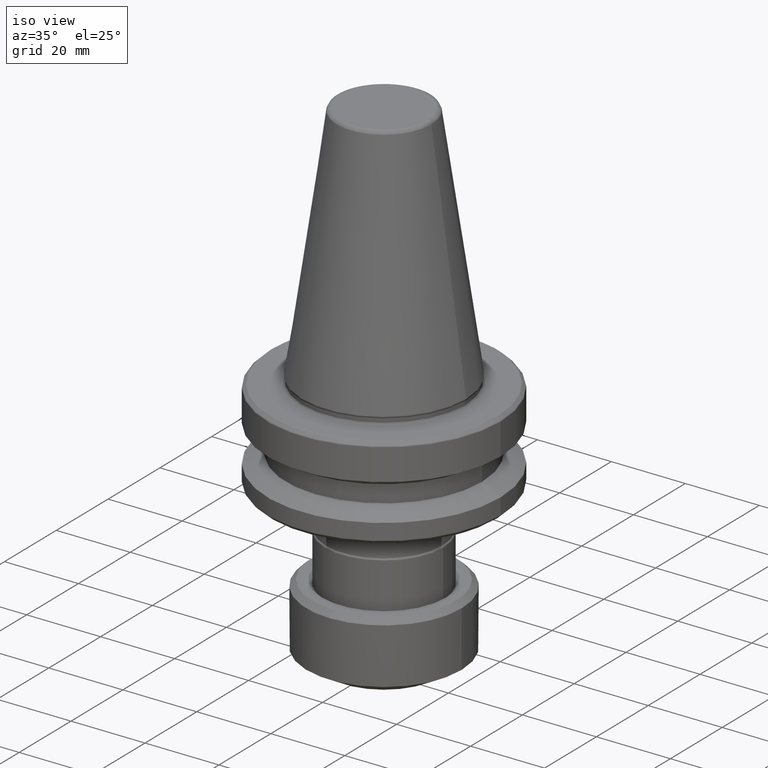
[diagram: clean part render]
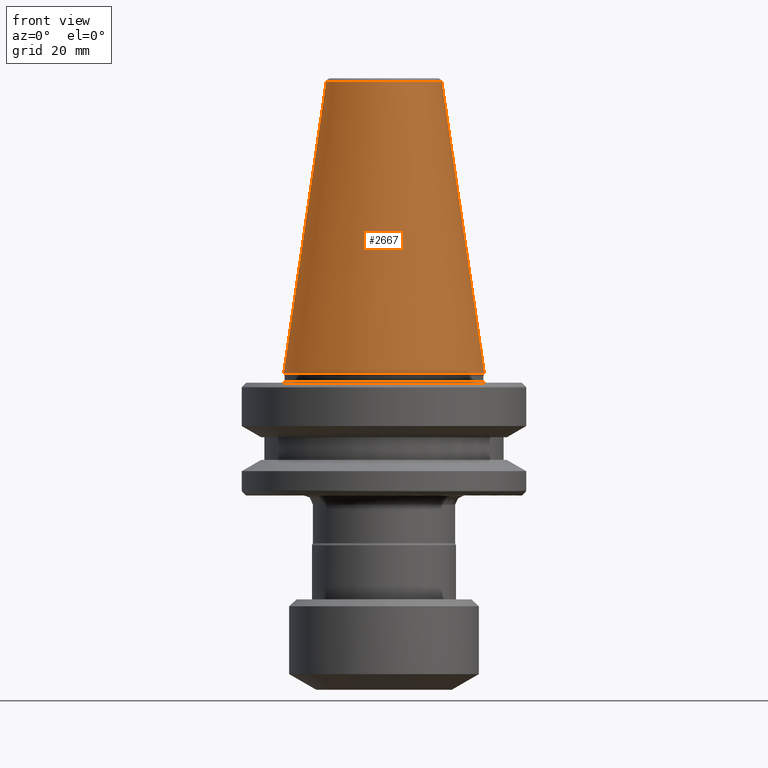
[diagram: tour spotlight — one face highlighted and labeled with its STEP entity id]
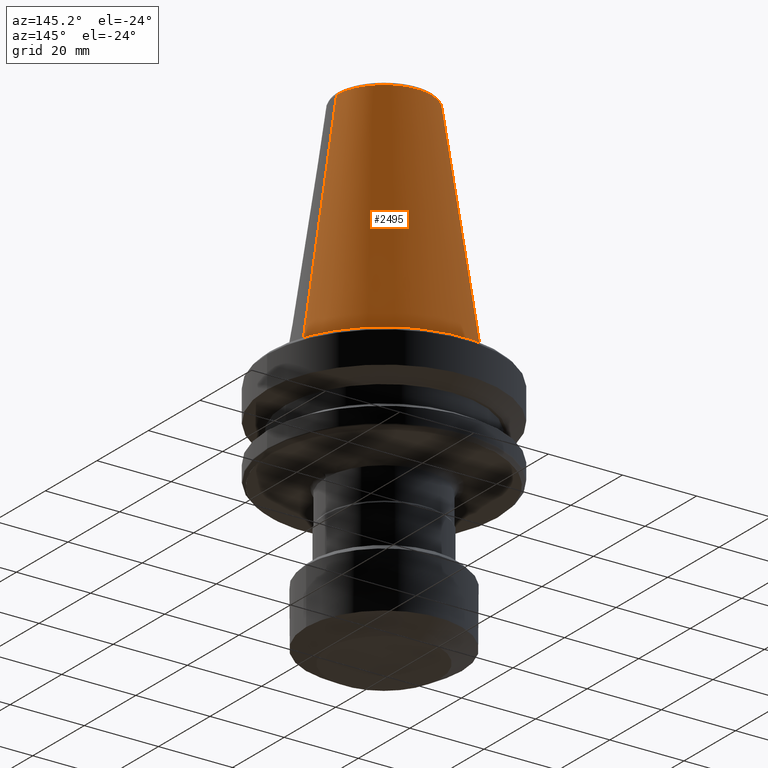
[diagram: tour spotlight — one face highlighted and labeled with its STEP entity id]
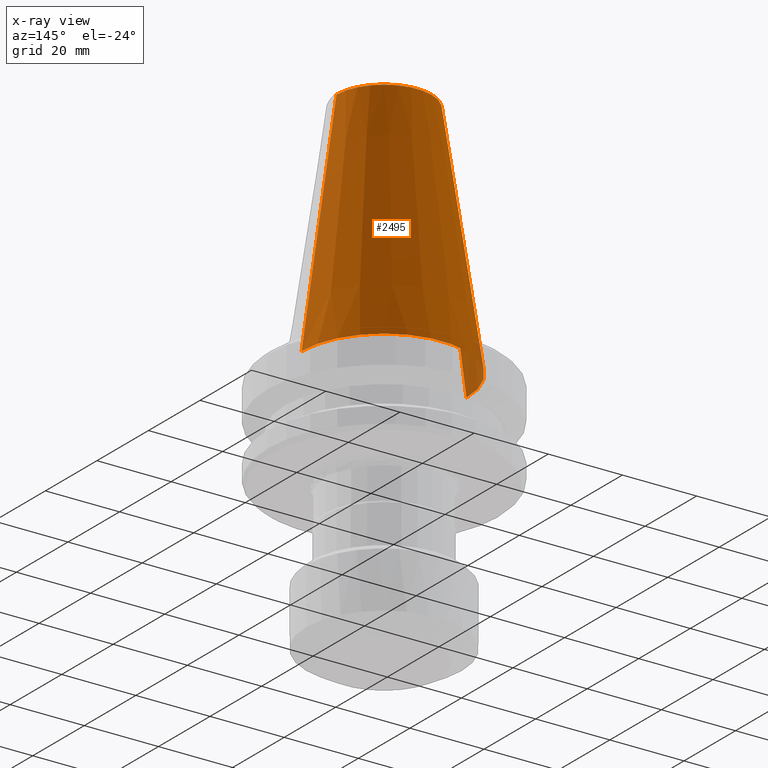
[diagram: x-ray of the same camera — body ghosted, this tour face saturated]
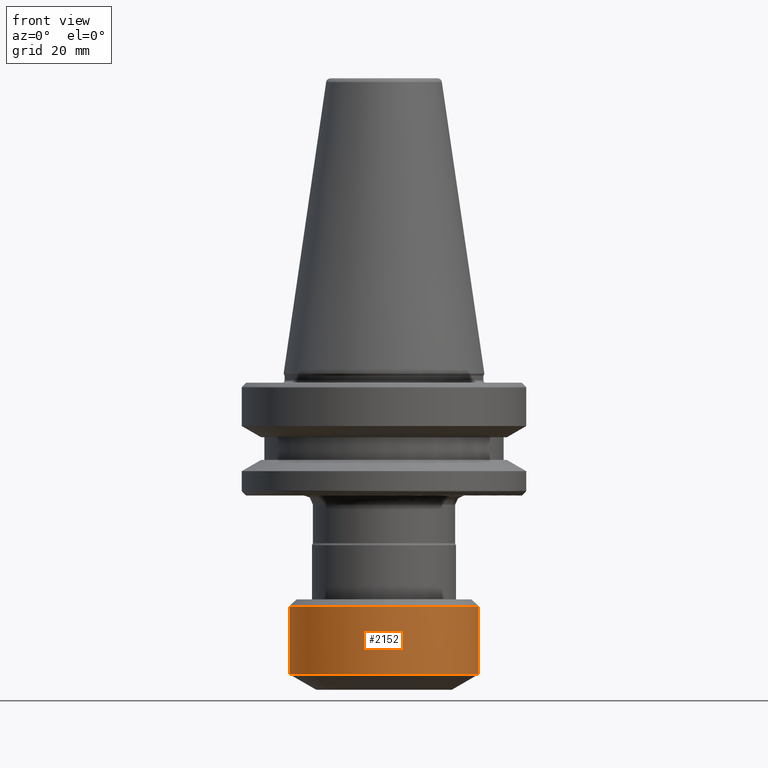
[diagram: tour spotlight — one face highlighted and labeled with its STEP entity id]
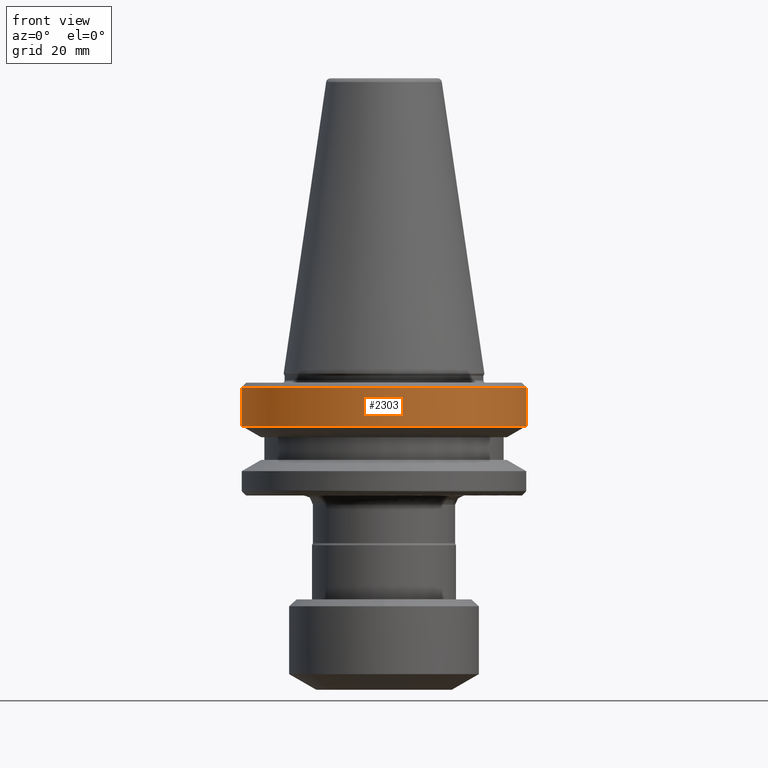
[diagram: tour spotlight — one face highlighted and labeled with its STEP entity id]
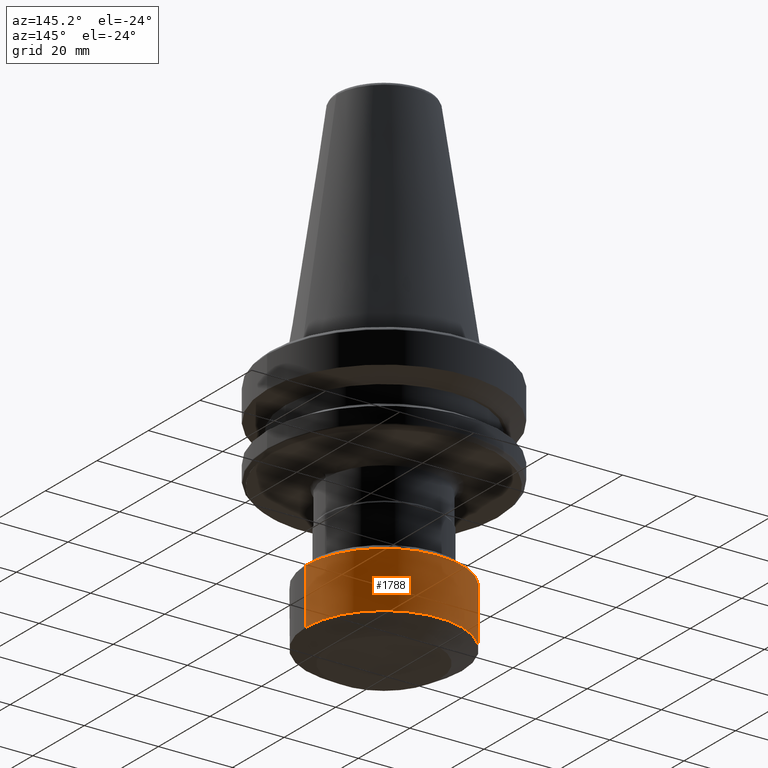
[diagram: tour spotlight — one face highlighted and labeled with its STEP entity id]
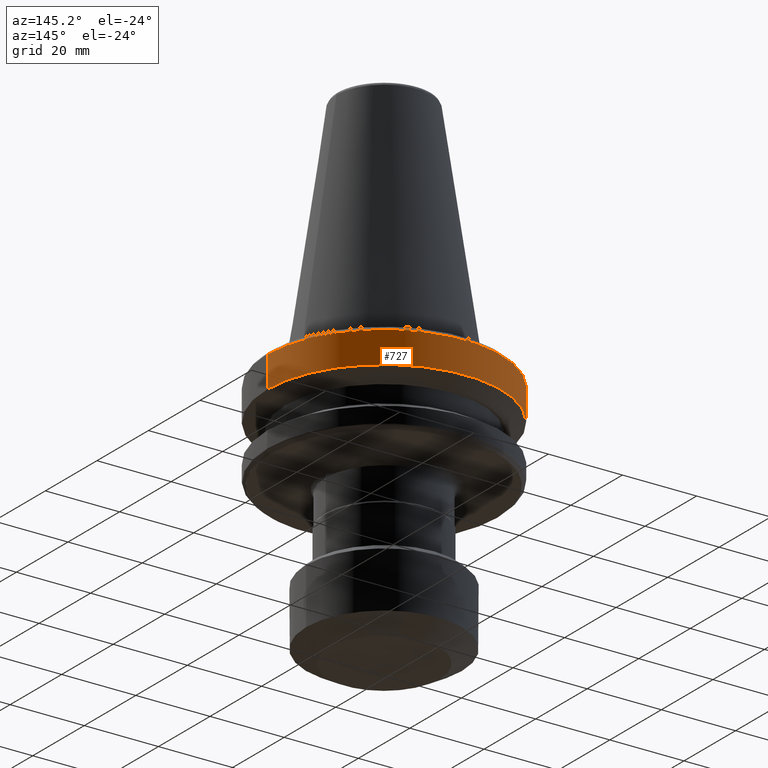
[diagram: tour spotlight — one face highlighted and labeled with its STEP entity id]
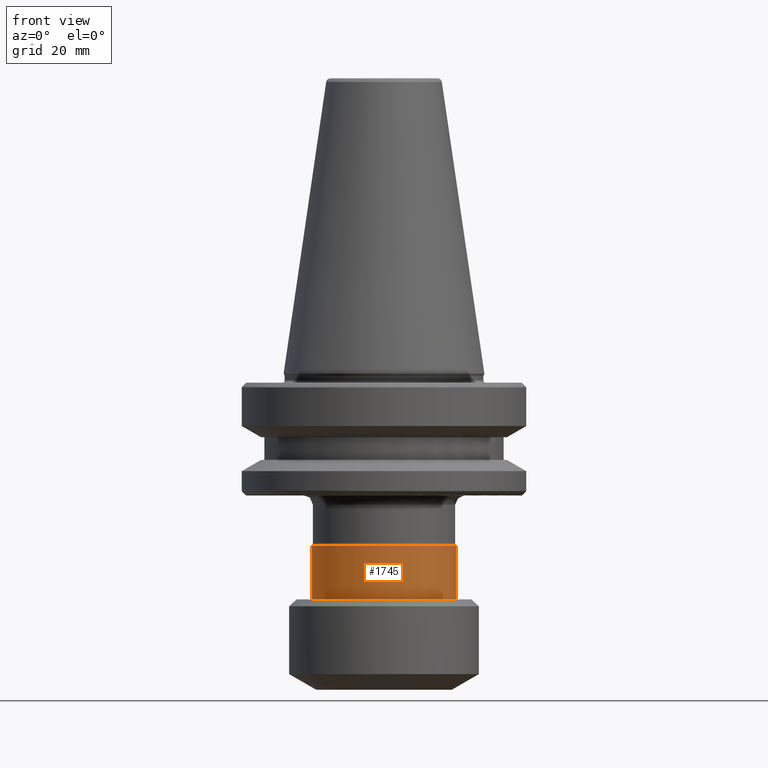
[diagram: tour spotlight — one face highlighted and labeled with its STEP entity id]
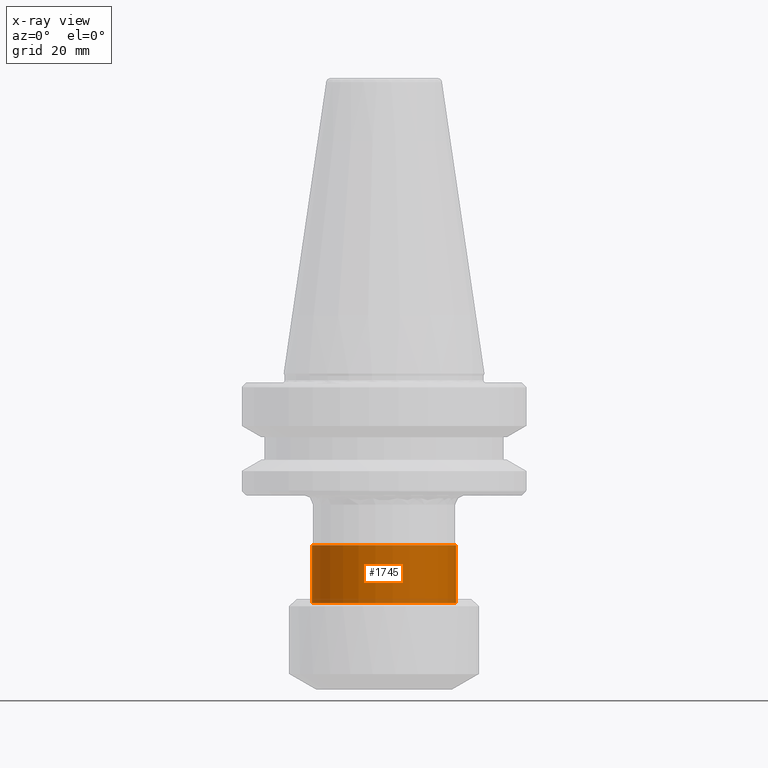
[diagram: x-ray of the same camera — body ghosted, this tour face saturated]
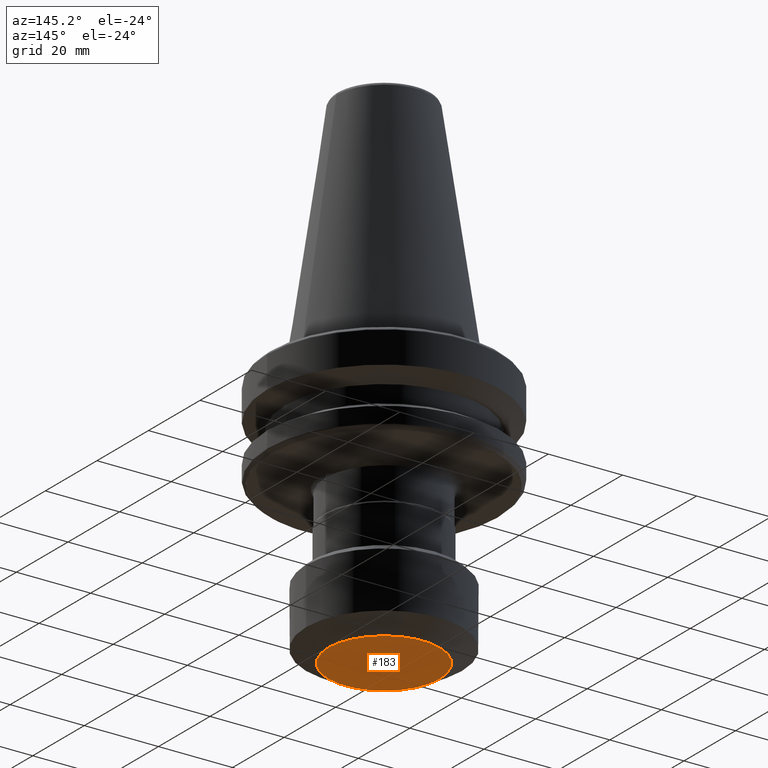
[diagram: tour spotlight — one face highlighted and labeled with its STEP entity id]
A machine part: a face-by-face anatomy tour. The part has 55 B-rep faces; the first image is the clean iso view, then the 8 largest visible faces are spotlighted one at a time (largest first), each with its STEP entity span.

Face 1 — front view, entity #2667. In plain terms, the highlighted conical surface has half-angle 8.297 deg.
Definition (entity closure, byte-faithful):
#6 = FACE_OUTER_BOUND ( 'NONE', #2127, .T. ) ;
#44 = EDGE_CURVE ( 'NONE', #1903, #810, #759, .T. ) ;
#55 = CARTESIAN_POINT ( 'NONE',  ( 61.73341380625030400, 81.23534176582239800, 67.06793828204411100 ) ) ;
#243 = LINE ( 'NONE', #1664, #259 ) ;
#259 = VECTOR ( 'NONE', #313, 1000.000000000000000 ) ;
#284 = DIRECTION ( 'NONE',  ( -1.000000000000000000, 0.0000000000000000000, 0.0000000000000000000 ) ) ;
#301 = CIRCLE ( 'NONE', #2684, 22.22499999999999400 ) ;
#313 = DIRECTION ( 'NONE',  ( -0.1443082272688266400, 0.0000000000000000000, -0.9895327864919528600 ) ) ;
#333 = AXIS2_PLACEMENT_3D ( 'NONE', #1336, #1682, #1022 ) ;
#401 = CIRCLE ( 'NONE', #333, 12.81219950700000100 ) ;
#445 = CARTESIAN_POINT ( 'NONE',  ( 61.73341380625030400, 81.23534176582239800, 131.6122465090441000 ) ) ;
#749 = VECTOR ( 'NONE', #1946, 1000.000000000000000 ) ;
#759 = LINE ( 'NONE', #2095, #749 ) ;
#810 = VERTEX_POINT ( 'NONE', #1616 ) ;
#910 = VERTEX_POINT ( 'NONE', #1190 ) ;
#1022 = DIRECTION ( 'NONE',  ( -1.000000000000000000, 0.0000000000000000000, 2.166339635943425300E-015 ) ) ;
#1046 = ORIENTED_EDGE ( 'NONE', *, *, #44, .F. ) ;
#1124 = ORIENTED_EDGE ( 'NONE', *, *, #1872, .F. ) ;
#1182 = DIRECTION ( 'NONE',  ( -1.000000000000000000, 0.0000000000000000000, 0.0000000000000000000 ) ) ;
#1190 = CARTESIAN_POINT ( 'NONE',  ( 48.92121429925030200, 81.23534176543890300, 131.6122465090440700 ) ) ;
#1252 = ORIENTED_EDGE ( 'NONE', *, *, #1658, .F. ) ;
#1336 = CARTESIAN_POINT ( 'NONE',  ( 61.73341380625030400, 81.23534176582239800, 131.6122465090440700 ) ) ;
#1538 = CARTESIAN_POINT ( 'NONE',  ( 39.50841380625031000, 81.23534176582239800, 67.06793828204411100 ) ) ;
#1616 = CARTESIAN_POINT ( 'NONE',  ( 83.95841380625029200, 81.23534176582239800, 67.06793828204411100 ) ) ;
#1645 = DIRECTION ( 'NONE',  ( 0.0000000000000000000, 0.0000000000000000000, -1.000000000000000000 ) ) ;
#1658 = EDGE_CURVE ( 'NONE', #910, #1903, #401, .T. ) ;
#1664 = CARTESIAN_POINT ( 'NONE',  ( 48.92121429925030200, 81.23534176582239800, 131.6122465090441000 ) ) ;
#1682 = DIRECTION ( 'NONE',  ( -0.0000000000000000000, -0.0000000000000000000, 1.000000000000000000 ) ) ;
#1709 = CONICAL_SURFACE ( 'NONE', #2058, 12.81219950700000100, 0.1448138465489547400 ) ;
#1835 = VERTEX_POINT ( 'NONE', #1538 ) ;
#1872 = EDGE_CURVE ( 'NONE', #810, #1835, #301, .T. ) ;
#1903 = VERTEX_POINT ( 'NONE', #2027 ) ;
#1946 = DIRECTION ( 'NONE',  ( 0.1443082272688266400, 1.767266086153973400E-017, -0.9895327864919528600 ) ) ;
#1961 = EDGE_CURVE ( 'NONE', #910, #1835, #243, .T. ) ;
#2027 = CARTESIAN_POINT ( 'NONE',  ( 74.54561331325031400, 81.23534176582239800, 131.6122465090441000 ) ) ;
#2058 = AXIS2_PLACEMENT_3D ( 'NONE', #445, #2683, #1182 ) ;
#2095 = CARTESIAN_POINT ( 'NONE',  ( 74.54561331325031400, 81.23534176582239800, 131.6122465090441000 ) ) ;
#2127 = EDGE_LOOP ( 'NONE', ( #1046, #1252, #2554, #1124 ) ) ;
#2554 = ORIENTED_EDGE ( 'NONE', *, *, #1961, .T. ) ;
#2667 = ADVANCED_FACE ( 'NONE', ( #6 ), #1709, .T. ) ;
#2683 = DIRECTION ( 'NONE',  ( 0.0000000000000000000, 0.0000000000000000000, -1.000000000000000000 ) ) ;
#2684 = AXIS2_PLACEMENT_3D ( 'NONE', #55, #1645, #284 ) ;

Face 2 — auxiliary view, entity #2495. An x-ray twin of the same camera follows (body ghosted, this face saturated) — the face is partly hidden behind the body. In plain terms, the highlighted conical surface has half-angle 8.297 deg.
Definition (entity closure, byte-faithful):
#38 = CONICAL_SURFACE ( 'NONE', #317, 12.81219950700000100, 0.1448138465489547400 ) ;
#44 = EDGE_CURVE ( 'NONE', #1903, #810, #759, .T. ) ;
#59 = FACE_OUTER_BOUND ( 'NONE', #2611, .T. ) ;
#181 = CIRCLE ( 'NONE', #540, 12.81219950700000100 ) ;
#243 = LINE ( 'NONE', #1664, #259 ) ;
#259 = VECTOR ( 'NONE', #313, 1000.000000000000000 ) ;
#313 = DIRECTION ( 'NONE',  ( -0.1443082272688266400, 0.0000000000000000000, -0.9895327864919528600 ) ) ;
#317 = AXIS2_PLACEMENT_3D ( 'NONE', #2638, #871, #380 ) ;
#380 = DIRECTION ( 'NONE',  ( -1.000000000000000000, 0.0000000000000000000, 0.0000000000000000000 ) ) ;
#540 = AXIS2_PLACEMENT_3D ( 'NONE', #1926, #650, #2106 ) ;
#589 = CIRCLE ( 'NONE', #2440, 22.22499999999999400 ) ;
#650 = DIRECTION ( 'NONE',  ( -0.0000000000000000000, -0.0000000000000000000, 1.000000000000000000 ) ) ;
#749 = VECTOR ( 'NONE', #1946, 1000.000000000000000 ) ;
#759 = LINE ( 'NONE', #2095, #749 ) ;
#810 = VERTEX_POINT ( 'NONE', #1616 ) ;
#858 = EDGE_CURVE ( 'NONE', #1835, #810, #589, .T. ) ;
#871 = DIRECTION ( 'NONE',  ( 0.0000000000000000000, 0.0000000000000000000, -1.000000000000000000 ) ) ;
#880 = ORIENTED_EDGE ( 'NONE', *, *, #44, .T. ) ;
#910 = VERTEX_POINT ( 'NONE', #1190 ) ;
#1161 = ORIENTED_EDGE ( 'NONE', *, *, #858, .F. ) ;
#1190 = CARTESIAN_POINT ( 'NONE',  ( 48.92121429925030200, 81.23534176543890300, 131.6122465090440700 ) ) ;
#1318 = DIRECTION ( 'NONE',  ( -1.000000000000000000, 0.0000000000000000000, 0.0000000000000000000 ) ) ;
#1320 = DIRECTION ( 'NONE',  ( 0.0000000000000000000, 0.0000000000000000000, -1.000000000000000000 ) ) ;
#1419 = CARTESIAN_POINT ( 'NONE',  ( 61.73341380625030400, 81.23534176582239800, 67.06793828204411100 ) ) ;
#1538 = CARTESIAN_POINT ( 'NONE',  ( 39.50841380625031000, 81.23534176582239800, 67.06793828204411100 ) ) ;
#1616 = CARTESIAN_POINT ( 'NONE',  ( 83.95841380625029200, 81.23534176582239800, 67.06793828204411100 ) ) ;
#1664 = CARTESIAN_POINT ( 'NONE',  ( 48.92121429925030200, 81.23534176582239800, 131.6122465090441000 ) ) ;
#1835 = VERTEX_POINT ( 'NONE', #1538 ) ;
#1841 = ORIENTED_EDGE ( 'NONE', *, *, #2210, .F. ) ;
#1903 = VERTEX_POINT ( 'NONE', #2027 ) ;
#1926 = CARTESIAN_POINT ( 'NONE',  ( 61.73341380625030400, 81.23534176582239800, 131.6122465090440700 ) ) ;
#1946 = DIRECTION ( 'NONE',  ( 0.1443082272688266400, 1.767266086153973400E-017, -0.9895327864919528600 ) ) ;
#1961 = EDGE_CURVE ( 'NONE', #910, #1835, #243, .T. ) ;
#2027 = CARTESIAN_POINT ( 'NONE',  ( 74.54561331325031400, 81.23534176582239800, 131.6122465090441000 ) ) ;
#2095 = CARTESIAN_POINT ( 'NONE',  ( 74.54561331325031400, 81.23534176582239800, 131.6122465090441000 ) ) ;
#2106 = DIRECTION ( 'NONE',  ( -1.000000000000000000, 0.0000000000000000000, 2.166339635943425300E-015 ) ) ;
#2137 = ORIENTED_EDGE ( 'NONE', *, *, #1961, .F. ) ;
#2210 = EDGE_CURVE ( 'NONE', #1903, #910, #181, .T. ) ;
#2440 = AXIS2_PLACEMENT_3D ( 'NONE', #1419, #1320, #1318 ) ;
#2495 = ADVANCED_FACE ( 'NONE', ( #59 ), #38, .T. ) ;
#2611 = EDGE_LOOP ( 'NONE', ( #1841, #880, #1161, #2137 ) ) ;
#2638 = CARTESIAN_POINT ( 'NONE',  ( 61.73341380625030400, 81.23534176582239800, 131.6122465090441000 ) ) ;

Face 3 — front view, entity #2152. In plain terms, the highlighted cylindrical surface (partial cylindrical patch) has radius 21 mm, axis along (0, -0, 1).
Definition (entity closure, byte-faithful):
#68 = CIRCLE ( 'NONE', #154, 20.99999999999998900 ) ;
#69 = AXIS2_PLACEMENT_3D ( 'NONE', #828, #2443, #1897 ) ;
#85 = AXIS2_PLACEMENT_3D ( 'NONE', #1813, #1511, #1606 ) ;
#142 = DIRECTION ( 'NONE',  ( 0.0000000000000000000, 0.0000000000000000000, 1.000000000000000000 ) ) ;
#154 = AXIS2_PLACEMENT_3D ( 'NONE', #1507, #142, #1720 ) ;
#174 = CYLINDRICAL_SURFACE ( 'NONE', #69, 21.00000000000000400 ) ;
#200 = FACE_OUTER_BOUND ( 'NONE', #916, .T. ) ;
#224 = EDGE_CURVE ( 'NONE', #2503, #2685, #730, .T. ) ;
#230 = VECTOR ( 'NONE', #1855, 1000.000000000000000 ) ;
#240 = LINE ( 'NONE', #557, #230 ) ;
#481 = CIRCLE ( 'NONE', #85, 20.99999999999998900 ) ;
#499 = CIRCLE ( 'NONE', #2288, 20.99999999999998900 ) ;
#557 = CARTESIAN_POINT ( 'NONE',  ( 40.73341380625029700, 81.23534176582239800, 0.5320398970441384500 ) ) ;
#712 = VECTOR ( 'NONE', #894, 1000.000000000000000 ) ;
#730 = LINE ( 'NONE', #2466, #712 ) ;
#803 = VERTEX_POINT ( 'NONE', #1148 ) ;
#828 = CARTESIAN_POINT ( 'NONE',  ( 61.73341380625030400, 81.23534176582239800, 0.5320398970441384500 ) ) ;
#873 = CARTESIAN_POINT ( 'NONE',  ( 40.73341380625029700, 81.23534176582239800, 15.56793828204414100 ) ) ;
#894 = DIRECTION ( 'NONE',  ( 0.0000000000000000000, -0.0000000000000000000, 1.000000000000000000 ) ) ;
#900 = ORIENTED_EDGE ( 'NONE', *, *, #1991, .F. ) ;
#907 = CARTESIAN_POINT ( 'NONE',  ( 40.73341380598234500, 81.23534176582239800, 0.5320398970441384500 ) ) ;
#916 = EDGE_LOOP ( 'NONE', ( #900, #2062, #2071, #992, #1347 ) ) ;
#992 = ORIENTED_EDGE ( 'NONE', *, *, #2491, .F. ) ;
#1080 = VERTEX_POINT ( 'NONE', #907 ) ;
#1148 = CARTESIAN_POINT ( 'NONE',  ( 61.73341380625030400, 60.23534176582239000, 15.56793828204414100 ) ) ;
#1175 = EDGE_CURVE ( 'NONE', #2503, #1080, #499, .T. ) ;
#1298 = EDGE_CURVE ( 'NONE', #2188, #803, #481, .T. ) ;
#1347 = ORIENTED_EDGE ( 'NONE', *, *, #1298, .F. ) ;
#1348 = DIRECTION ( 'NONE',  ( 1.000000000000000000, 0.0000000000000000000, 0.0000000000000000000 ) ) ;
#1360 = DIRECTION ( 'NONE',  ( -0.0000000000000000000, -0.0000000000000000000, -1.000000000000000000 ) ) ;
#1373 = CARTESIAN_POINT ( 'NONE',  ( 61.73341380625030400, 81.23534176582239800, 0.5320398970441384500 ) ) ;
#1499 = CARTESIAN_POINT ( 'NONE',  ( 82.73341380651824300, 81.23534176582239800, 0.5320398970441384500 ) ) ;
#1507 = CARTESIAN_POINT ( 'NONE',  ( 61.73341380625030400, 81.23534176582239800, 15.56793828204414100 ) ) ;
#1511 = DIRECTION ( 'NONE',  ( 0.0000000000000000000, 0.0000000000000000000, 1.000000000000000000 ) ) ;
#1606 = DIRECTION ( 'NONE',  ( 1.000000000000000000, 0.0000000000000000000, 0.0000000000000000000 ) ) ;
#1720 = DIRECTION ( 'NONE',  ( 1.000000000000000000, 0.0000000000000000000, 0.0000000000000000000 ) ) ;
#1779 = CARTESIAN_POINT ( 'NONE',  ( 82.73341380625031100, 81.23534176582239800, 15.56793828204414100 ) ) ;
#1813 = CARTESIAN_POINT ( 'NONE',  ( 61.73341380625030400, 81.23534176582239800, 15.56793828204414100 ) ) ;
#1855 = DIRECTION ( 'NONE',  ( 0.0000000000000000000, -0.0000000000000000000, 1.000000000000000000 ) ) ;
#1897 = DIRECTION ( 'NONE',  ( 1.000000000000000000, 0.0000000000000000000, 0.0000000000000000000 ) ) ;
#1991 = EDGE_CURVE ( 'NONE', #1080, #2188, #240, .T. ) ;
#2062 = ORIENTED_EDGE ( 'NONE', *, *, #1175, .F. ) ;
#2071 = ORIENTED_EDGE ( 'NONE', *, *, #224, .T. ) ;
#2152 = ADVANCED_FACE ( 'NONE', ( #200 ), #174, .T. ) ;
#2188 = VERTEX_POINT ( 'NONE', #873 ) ;
#2288 = AXIS2_PLACEMENT_3D ( 'NONE', #1373, #1360, #1348 ) ;
#2443 = DIRECTION ( 'NONE',  ( 0.0000000000000000000, -0.0000000000000000000, 1.000000000000000000 ) ) ;
#2466 = CARTESIAN_POINT ( 'NONE',  ( 82.73341380625031100, 81.23534176582239800, 0.5320398970441384500 ) ) ;
#2491 = EDGE_CURVE ( 'NONE', #803, #2685, #68, .T. ) ;
#2503 = VERTEX_POINT ( 'NONE', #1499 ) ;
#2685 = VERTEX_POINT ( 'NONE', #1779 ) ;

Face 4 — front view, entity #2303. In plain terms, the highlighted cylindrical surface (partial cylindrical patch) has radius 31.5 mm, axis along (-0, 0, 1).
Definition (entity closure, byte-faithful):
#13 = VECTOR ( 'NONE', #922, 1000.000000000000000 ) ;
#35 = LINE ( 'NONE', #1948, #13 ) ;
#123 = CIRCLE ( 'NONE', #1977, 31.50000000000000000 ) ;
#131 = DIRECTION ( 'NONE',  ( -2.753529326947312600E-017, 0.0000000000000000000, 1.000000000000000000 ) ) ;
#135 = CYLINDRICAL_SURFACE ( 'NONE', #1454, 31.50000000000000000 ) ;
#146 = FACE_OUTER_BOUND ( 'NONE', #1048, .T. ) ;
#165 = VECTOR ( 'NONE', #396, 1000.000000000000000 ) ;
#166 = LINE ( 'NONE', #1731, #165 ) ;
#396 = DIRECTION ( 'NONE',  ( -2.753529326947312600E-017, 0.0000000000000000000, 1.000000000000000000 ) ) ;
#596 = CIRCLE ( 'NONE', #1838, 31.50000000000000000 ) ;
#703 = EDGE_CURVE ( 'NONE', #1213, #2614, #596, .T. ) ;
#814 = CARTESIAN_POINT ( 'NONE',  ( 30.23341380625761600, 81.23534176582239800, 63.90225285604410000 ) ) ;
#922 = DIRECTION ( 'NONE',  ( -2.753529326947312600E-017, 0.0000000000000000000, 1.000000000000000000 ) ) ;
#1048 = EDGE_LOOP ( 'NONE', ( #2502, #1051, #1796, #2175 ) ) ;
#1051 = ORIENTED_EDGE ( 'NONE', *, *, #703, .T. ) ;
#1145 = CARTESIAN_POINT ( 'NONE',  ( 93.23341380624299300, 81.23534176582239800, 63.90225285604410000 ) ) ;
#1197 = CARTESIAN_POINT ( 'NONE',  ( 30.23341380625030400, 81.23534176582239800, 55.46390148157179600 ) ) ;
#1213 = VERTEX_POINT ( 'NONE', #1197 ) ;
#1387 = DIRECTION ( 'NONE',  ( 1.000000000000000000, 0.0000000000000000000, 0.0000000000000000000 ) ) ;
#1454 = AXIS2_PLACEMENT_3D ( 'NONE', #2698, #1588, #1387 ) ;
#1498 = CARTESIAN_POINT ( 'NONE',  ( 61.73341380625030400, 81.23534176582239800, 63.90225285604410000 ) ) ;
#1565 = CARTESIAN_POINT ( 'NONE',  ( 93.23341380625029700, 81.23534176582239800, 55.46390148157179600 ) ) ;
#1588 = DIRECTION ( 'NONE',  ( -2.753529326947312600E-017, 0.0000000000000000000, 1.000000000000000000 ) ) ;
#1710 = DIRECTION ( 'NONE',  ( 1.000000000000000000, 0.0000000000000000000, 0.0000000000000000000 ) ) ;
#1731 = CARTESIAN_POINT ( 'NONE',  ( 30.23341380625030400, 81.23534176582239800, 55.46808028804410600 ) ) ;
#1771 = DIRECTION ( 'NONE',  ( 1.000000000000000000, 0.0000000000000000000, 0.0000000000000000000 ) ) ;
#1796 = ORIENTED_EDGE ( 'NONE', *, *, #2565, .T. ) ;
#1826 = VERTEX_POINT ( 'NONE', #1145 ) ;
#1838 = AXIS2_PLACEMENT_3D ( 'NONE', #2204, #2269, #1771 ) ;
#1948 = CARTESIAN_POINT ( 'NONE',  ( 93.23341380625029700, 81.23534176582239800, 55.46808028804410600 ) ) ;
#1977 = AXIS2_PLACEMENT_3D ( 'NONE', #1498, #131, #1710 ) ;
#1990 = VERTEX_POINT ( 'NONE', #814 ) ;
#2175 = ORIENTED_EDGE ( 'NONE', *, *, #2380, .F. ) ;
#2204 = CARTESIAN_POINT ( 'NONE',  ( 61.73341380625030400, 81.23534176582239800, 55.46390148157179600 ) ) ;
#2218 = EDGE_CURVE ( 'NONE', #1213, #1990, #166, .T. ) ;
#2269 = DIRECTION ( 'NONE',  ( -0.0000000000000000000, -0.0000000000000000000, 1.000000000000000000 ) ) ;
#2303 = ADVANCED_FACE ( 'NONE', ( #146 ), #135, .T. ) ;
#2380 = EDGE_CURVE ( 'NONE', #1990, #1826, #123, .T. ) ;
#2502 = ORIENTED_EDGE ( 'NONE', *, *, #2218, .F. ) ;
#2565 = EDGE_CURVE ( 'NONE', #2614, #1826, #35, .T. ) ;
#2614 = VERTEX_POINT ( 'NONE', #1565 ) ;
#2698 = CARTESIAN_POINT ( 'NONE',  ( 61.73341380625030400, 81.23534176582239800, 55.46808028804410600 ) ) ;

Face 5 — auxiliary view, entity #1788. In plain terms, the highlighted cylindrical surface (partial cylindrical patch) has radius 21 mm, axis along (0, -0, 1).
Definition (entity closure, byte-faithful):
#37 = EDGE_CURVE ( 'NONE', #2685, #1561, #1687, .T. ) ;
#42 = CARTESIAN_POINT ( 'NONE',  ( 61.73341380625030400, 81.23534176582239800, 15.56793828204414100 ) ) ;
#115 = CIRCLE ( 'NONE', #2102, 20.99999999999998900 ) ;
#145 = DIRECTION ( 'NONE',  ( 0.0000000000000000000, 0.0000000000000000000, 1.000000000000000000 ) ) ;
#185 = CIRCLE ( 'NONE', #2271, 20.99999999999998900 ) ;
#224 = EDGE_CURVE ( 'NONE', #2503, #2685, #730, .T. ) ;
#230 = VECTOR ( 'NONE', #1855, 1000.000000000000000 ) ;
#240 = LINE ( 'NONE', #557, #230 ) ;
#310 = CYLINDRICAL_SURFACE ( 'NONE', #2556, 21.00000000000000400 ) ;
#325 = FACE_OUTER_BOUND ( 'NONE', #845, .T. ) ;
#557 = CARTESIAN_POINT ( 'NONE',  ( 40.73341380625029700, 81.23534176582239800, 0.5320398970441384500 ) ) ;
#622 = CARTESIAN_POINT ( 'NONE',  ( 61.73341380625030400, 81.23534176582239800, 0.5320398970441384500 ) ) ;
#712 = VECTOR ( 'NONE', #894, 1000.000000000000000 ) ;
#730 = LINE ( 'NONE', #2466, #712 ) ;
#843 = ORIENTED_EDGE ( 'NONE', *, *, #37, .F. ) ;
#845 = EDGE_LOOP ( 'NONE', ( #2239, #1631, #1217, #843, #1887 ) ) ;
#870 = DIRECTION ( 'NONE',  ( 1.000000000000000000, 0.0000000000000000000, 0.0000000000000000000 ) ) ;
#873 = CARTESIAN_POINT ( 'NONE',  ( 40.73341380625029700, 81.23534176582239800, 15.56793828204414100 ) ) ;
#894 = DIRECTION ( 'NONE',  ( 0.0000000000000000000, -0.0000000000000000000, 1.000000000000000000 ) ) ;
#907 = CARTESIAN_POINT ( 'NONE',  ( 40.73341380598234500, 81.23534176582239800, 0.5320398970441384500 ) ) ;
#1080 = VERTEX_POINT ( 'NONE', #907 ) ;
#1133 = DIRECTION ( 'NONE',  ( 1.000000000000000000, 0.0000000000000000000, 0.0000000000000000000 ) ) ;
#1217 = ORIENTED_EDGE ( 'NONE', *, *, #2167, .F. ) ;
#1499 = CARTESIAN_POINT ( 'NONE',  ( 82.73341380651824300, 81.23534176582239800, 0.5320398970441384500 ) ) ;
#1510 = CARTESIAN_POINT ( 'NONE',  ( 61.73341380625030400, 81.23534176582239800, 15.56793828204414100 ) ) ;
#1525 = CARTESIAN_POINT ( 'NONE',  ( 61.73341380625030400, 81.23534176582239800, 0.5320398970441384500 ) ) ;
#1561 = VERTEX_POINT ( 'NONE', #1646 ) ;
#1583 = AXIS2_PLACEMENT_3D ( 'NONE', #42, #2408, #1825 ) ;
#1631 = ORIENTED_EDGE ( 'NONE', *, *, #1991, .T. ) ;
#1646 = CARTESIAN_POINT ( 'NONE',  ( 61.73341380625030400, 102.2353417658224000, 15.56793828204414100 ) ) ;
#1687 = CIRCLE ( 'NONE', #1583, 20.99999999999998900 ) ;
#1722 = DIRECTION ( 'NONE',  ( 1.000000000000000000, 0.0000000000000000000, 0.0000000000000000000 ) ) ;
#1779 = CARTESIAN_POINT ( 'NONE',  ( 82.73341380625031100, 81.23534176582239800, 15.56793828204414100 ) ) ;
#1788 = ADVANCED_FACE ( 'NONE', ( #325 ), #310, .T. ) ;
#1825 = DIRECTION ( 'NONE',  ( 1.000000000000000000, 0.0000000000000000000, 0.0000000000000000000 ) ) ;
#1855 = DIRECTION ( 'NONE',  ( 0.0000000000000000000, -0.0000000000000000000, 1.000000000000000000 ) ) ;
#1887 = ORIENTED_EDGE ( 'NONE', *, *, #224, .F. ) ;
#1991 = EDGE_CURVE ( 'NONE', #1080, #2188, #240, .T. ) ;
#2092 = DIRECTION ( 'NONE',  ( -0.0000000000000000000, -0.0000000000000000000, -1.000000000000000000 ) ) ;
#2102 = AXIS2_PLACEMENT_3D ( 'NONE', #622, #2092, #870 ) ;
#2167 = EDGE_CURVE ( 'NONE', #1561, #2188, #185, .T. ) ;
#2188 = VERTEX_POINT ( 'NONE', #873 ) ;
#2239 = ORIENTED_EDGE ( 'NONE', *, *, #2388, .F. ) ;
#2271 = AXIS2_PLACEMENT_3D ( 'NONE', #1510, #145, #1722 ) ;
#2388 = EDGE_CURVE ( 'NONE', #1080, #2503, #115, .T. ) ;
#2408 = DIRECTION ( 'NONE',  ( 0.0000000000000000000, 0.0000000000000000000, 1.000000000000000000 ) ) ;
#2466 = CARTESIAN_POINT ( 'NONE',  ( 82.73341380625031100, 81.23534176582239800, 0.5320398970441384500 ) ) ;
#2503 = VERTEX_POINT ( 'NONE', #1499 ) ;
#2556 = AXIS2_PLACEMENT_3D ( 'NONE', #1525, #2654, #1133 ) ;
#2654 = DIRECTION ( 'NONE',  ( 0.0000000000000000000, -0.0000000000000000000, 1.000000000000000000 ) ) ;
#2685 = VERTEX_POINT ( 'NONE', #1779 ) ;

Face 6 — auxiliary view, entity #727. In plain terms, the highlighted cylindrical surface (partial cylindrical patch) has radius 31.5 mm, axis along (-0, 0, 1).
Definition (entity closure, byte-faithful):
#13 = VECTOR ( 'NONE', #922, 1000.000000000000000 ) ;
#35 = LINE ( 'NONE', #1948, #13 ) ;
#65 = CIRCLE ( 'NONE', #2224, 31.50000000000000000 ) ;
#165 = VECTOR ( 'NONE', #396, 1000.000000000000000 ) ;
#166 = LINE ( 'NONE', #1731, #165 ) ;
#221 = EDGE_CURVE ( 'NONE', #2614, #1213, #705, .T. ) ;
#233 = CARTESIAN_POINT ( 'NONE',  ( 61.73341380625030400, 81.23534176582239800, 55.46390148157179600 ) ) ;
#396 = DIRECTION ( 'NONE',  ( -2.753529326947312600E-017, 0.0000000000000000000, 1.000000000000000000 ) ) ;
#579 = CYLINDRICAL_SURFACE ( 'NONE', #2693, 31.50000000000000000 ) ;
#592 = FACE_OUTER_BOUND ( 'NONE', #1059, .T. ) ;
#705 = CIRCLE ( 'NONE', #2487, 31.50000000000000000 ) ;
#727 = ADVANCED_FACE ( 'NONE', ( #592 ), #579, .T. ) ;
#814 = CARTESIAN_POINT ( 'NONE',  ( 30.23341380625761600, 81.23534176582239800, 63.90225285604410000 ) ) ;
#835 = ORIENTED_EDGE ( 'NONE', *, *, #221, .T. ) ;
#922 = DIRECTION ( 'NONE',  ( -2.753529326947312600E-017, 0.0000000000000000000, 1.000000000000000000 ) ) ;
#1012 = ORIENTED_EDGE ( 'NONE', *, *, #2565, .F. ) ;
#1059 = EDGE_LOOP ( 'NONE', ( #835, #1381, #1179, #1012 ) ) ;
#1114 = DIRECTION ( 'NONE',  ( -2.753529326947312600E-017, 0.0000000000000000000, 1.000000000000000000 ) ) ;
#1145 = CARTESIAN_POINT ( 'NONE',  ( 93.23341380624299300, 81.23534176582239800, 63.90225285604410000 ) ) ;
#1179 = ORIENTED_EDGE ( 'NONE', *, *, #2481, .F. ) ;
#1197 = CARTESIAN_POINT ( 'NONE',  ( 30.23341380625030400, 81.23534176582239800, 55.46390148157179600 ) ) ;
#1213 = VERTEX_POINT ( 'NONE', #1197 ) ;
#1381 = ORIENTED_EDGE ( 'NONE', *, *, #2218, .T. ) ;
#1565 = CARTESIAN_POINT ( 'NONE',  ( 93.23341380625029700, 81.23534176582239800, 55.46390148157179600 ) ) ;
#1620 = DIRECTION ( 'NONE',  ( 1.000000000000000000, 0.0000000000000000000, 0.0000000000000000000 ) ) ;
#1731 = CARTESIAN_POINT ( 'NONE',  ( 30.23341380625030400, 81.23534176582239800, 55.46808028804410600 ) ) ;
#1765 = CARTESIAN_POINT ( 'NONE',  ( 61.73341380625030400, 81.23534176582239800, 55.46808028804410600 ) ) ;
#1826 = VERTEX_POINT ( 'NONE', #1145 ) ;
#1867 = DIRECTION ( 'NONE',  ( -0.0000000000000000000, -0.0000000000000000000, 1.000000000000000000 ) ) ;
#1879 = DIRECTION ( 'NONE',  ( 1.000000000000000000, 0.0000000000000000000, 0.0000000000000000000 ) ) ;
#1948 = CARTESIAN_POINT ( 'NONE',  ( 93.23341380625029700, 81.23534176582239800, 55.46808028804410600 ) ) ;
#1990 = VERTEX_POINT ( 'NONE', #814 ) ;
#2218 = EDGE_CURVE ( 'NONE', #1213, #1990, #166, .T. ) ;
#2224 = AXIS2_PLACEMENT_3D ( 'NONE', #2277, #1114, #2451 ) ;
#2277 = CARTESIAN_POINT ( 'NONE',  ( 61.73341380625030400, 81.23534176582239800, 63.90225285604410000 ) ) ;
#2451 = DIRECTION ( 'NONE',  ( 1.000000000000000000, 0.0000000000000000000, 0.0000000000000000000 ) ) ;
#2481 = EDGE_CURVE ( 'NONE', #1826, #1990, #65, .T. ) ;
#2487 = AXIS2_PLACEMENT_3D ( 'NONE', #233, #1867, #1879 ) ;
#2559 = DIRECTION ( 'NONE',  ( -2.753529326947312600E-017, 0.0000000000000000000, 1.000000000000000000 ) ) ;
#2565 = EDGE_CURVE ( 'NONE', #2614, #1826, #35, .T. ) ;
#2614 = VERTEX_POINT ( 'NONE', #1565 ) ;
#2693 = AXIS2_PLACEMENT_3D ( 'NONE', #1765, #2559, #1620 ) ;

Face 7 — front view, entity #1745. An x-ray twin of the same camera follows (body ghosted, this face saturated) — the face is partly hidden behind the body. In plain terms, the highlighted cylindrical surface (partial cylindrical patch) has radius 15.95 mm, axis along (0, -0, 1).
Definition (entity closure, byte-faithful):
#97 = CARTESIAN_POINT ( 'NONE',  ( 61.73341380625030400, 81.23534176582239800, 12.51793828204410300 ) ) ;
#121 = CIRCLE ( 'NONE', #1936, 15.95000000000000600 ) ;
#341 = CYLINDRICAL_SURFACE ( 'NONE', #1691, 15.95000000000000600 ) ;
#353 = FACE_OUTER_BOUND ( 'NONE', #2462, .T. ) ;
#383 = DIRECTION ( 'NONE',  ( 1.000000000000000000, 0.0000000000000000000, 0.0000000000000000000 ) ) ;
#395 = CARTESIAN_POINT ( 'NONE',  ( 77.68341380625031400, 81.23534176582239800, 29.06793828204407100 ) ) ;
#532 = CIRCLE ( 'NONE', #800, 15.95000000000000600 ) ;
#533 = DIRECTION ( 'NONE',  ( 0.0000000000000000000, -0.0000000000000000000, 1.000000000000000000 ) ) ;
#537 = DIRECTION ( 'NONE',  ( 0.0000000000000000000, -0.0000000000000000000, 1.000000000000000000 ) ) ;
#565 = EDGE_CURVE ( 'NONE', #958, #2435, #664, .T. ) ;
#572 = EDGE_CURVE ( 'NONE', #935, #1357, #656, .T. ) ;
#612 = CARTESIAN_POINT ( 'NONE',  ( 77.68341380625031400, 81.23534176582239800, 12.51793828204410300 ) ) ;
#647 = VECTOR ( 'NONE', #537, 1000.000000000000000 ) ;
#656 = LINE ( 'NONE', #612, #647 ) ;
#664 = LINE ( 'NONE', #1962, #677 ) ;
#677 = VECTOR ( 'NONE', #533, 1000.000000000000000 ) ;
#702 = DIRECTION ( 'NONE',  ( 0.0000000000000000000, -0.0000000000000000000, 1.000000000000000000 ) ) ;
#800 = AXIS2_PLACEMENT_3D ( 'NONE', #1478, #1476, #1463 ) ;
#918 = ORIENTED_EDGE ( 'NONE', *, *, #572, .T. ) ;
#935 = VERTEX_POINT ( 'NONE', #1192 ) ;
#958 = VERTEX_POINT ( 'NONE', #1031 ) ;
#1031 = CARTESIAN_POINT ( 'NONE',  ( 45.78341380625029400, 81.23534176582239800, 16.26793828204414500 ) ) ;
#1146 = EDGE_CURVE ( 'NONE', #1357, #2435, #532, .T. ) ;
#1192 = CARTESIAN_POINT ( 'NONE',  ( 77.68341380625031400, 81.23534176582239800, 16.26793828204414500 ) ) ;
#1357 = VERTEX_POINT ( 'NONE', #395 ) ;
#1463 = DIRECTION ( 'NONE',  ( -1.000000000000000000, 0.0000000000000000000, 2.175201850754616000E-015 ) ) ;
#1476 = DIRECTION ( 'NONE',  ( 0.0000000000000000000, 0.0000000000000000000, -1.000000000000000000 ) ) ;
#1478 = CARTESIAN_POINT ( 'NONE',  ( 61.73341380625030400, 81.23534176582239800, 29.06793828204407100 ) ) ;
#1514 = ORIENTED_EDGE ( 'NONE', *, *, #565, .F. ) ;
#1691 = AXIS2_PLACEMENT_3D ( 'NONE', #97, #2258, #383 ) ;
#1745 = ADVANCED_FACE ( 'NONE', ( #353 ), #341, .T. ) ;
#1936 = AXIS2_PLACEMENT_3D ( 'NONE', #1960, #702, #2148 ) ;
#1960 = CARTESIAN_POINT ( 'NONE',  ( 61.73341380625030400, 81.23534176582239800, 16.26793828204414500 ) ) ;
#1962 = CARTESIAN_POINT ( 'NONE',  ( 45.78341380625029400, 81.23534176582239800, 12.51793828204410300 ) ) ;
#2148 = DIRECTION ( 'NONE',  ( 1.000000000000000000, 0.0000000000000000000, 0.0000000000000000000 ) ) ;
#2258 = DIRECTION ( 'NONE',  ( 0.0000000000000000000, -0.0000000000000000000, 1.000000000000000000 ) ) ;
#2435 = VERTEX_POINT ( 'NONE', #2438 ) ;
#2438 = CARTESIAN_POINT ( 'NONE',  ( 45.78341380625029400, 81.23534176582239800, 29.06793828204407100 ) ) ;
#2462 = EDGE_LOOP ( 'NONE', ( #1514, #2531, #918, #2697 ) ) ;
#2531 = ORIENTED_EDGE ( 'NONE', *, *, #2647, .T. ) ;
#2647 = EDGE_CURVE ( 'NONE', #958, #935, #121, .T. ) ;
#2697 = ORIENTED_EDGE ( 'NONE', *, *, #1146, .T. ) ;

Face 8 — auxiliary view, entity #183. In plain terms, the highlighted planar face has unit normal (-0, 0, -1).
Definition (entity closure, byte-faithful):
#82 = DIRECTION ( 'NONE',  ( 5.782411586589358600E-017, -0.0000000000000000000, -1.000000000000000000 ) ) ;
#183 = ADVANCED_FACE ( 'NONE', ( #747 ), #586, .T. ) ;
#189 = AXIS2_PLACEMENT_3D ( 'NONE', #531, #82, #2449 ) ;
#237 = CIRCLE ( 'NONE', #1378, 14.99999999999998600 ) ;
#303 = DIRECTION ( 'NONE',  ( -0.0000000000000000000, 0.0000000000000000000, -1.000000000000000000 ) ) ;
#323 = DIRECTION ( 'NONE',  ( 5.782411586589358600E-017, -0.0000000000000000000, -1.000000000000000000 ) ) ;
#331 = EDGE_CURVE ( 'NONE', #2090, #2509, #733, .T. ) ;
#531 = CARTESIAN_POINT ( 'NONE',  ( 61.73341380625030400, 81.23534176582239800, -2.932061717955869000 ) ) ;
#586 = PLANE ( 'NONE',  #2234 ) ;
#733 = CIRCLE ( 'NONE', #189, 14.99999999999998600 ) ;
#747 = FACE_OUTER_BOUND ( 'NONE', #1187, .T. ) ;
#1070 = ORIENTED_EDGE ( 'NONE', *, *, #2042, .T. ) ;
#1073 = CARTESIAN_POINT ( 'NONE',  ( 61.73341380625030400, 95.60324806993037300, -2.932061717955869000 ) ) ;
#1128 = CARTESIAN_POINT ( 'NONE',  ( 46.73341380625031900, 81.23534176582239800, -2.932061717955869900 ) ) ;
#1187 = EDGE_LOOP ( 'NONE', ( #2132, #1070 ) ) ;
#1378 = AXIS2_PLACEMENT_3D ( 'NONE', #1671, #323, #1862 ) ;
#1671 = CARTESIAN_POINT ( 'NONE',  ( 61.73341380625030400, 81.23534176582239800, -2.932061717955869000 ) ) ;
#1862 = DIRECTION ( 'NONE',  ( 1.000000000000000000, 0.0000000000000000000, 5.782411586589362300E-017 ) ) ;
#2042 = EDGE_CURVE ( 'NONE', #2509, #2090, #237, .T. ) ;
#2090 = VERTEX_POINT ( 'NONE', #2233 ) ;
#2132 = ORIENTED_EDGE ( 'NONE', *, *, #331, .T. ) ;
#2233 = CARTESIAN_POINT ( 'NONE',  ( 76.73341380625028300, 81.23534176582239800, -2.932061717955868100 ) ) ;
#2234 = AXIS2_PLACEMENT_3D ( 'NONE', #1073, #303, #2573 ) ;
#2449 = DIRECTION ( 'NONE',  ( 1.000000000000000000, 0.0000000000000000000, 5.782411586589362300E-017 ) ) ;
#2509 = VERTEX_POINT ( 'NONE', #1128 ) ;
#2573 = DIRECTION ( 'NONE',  ( -1.000000000000000000, 0.0000000000000000000, 0.0000000000000000000 ) ) ;